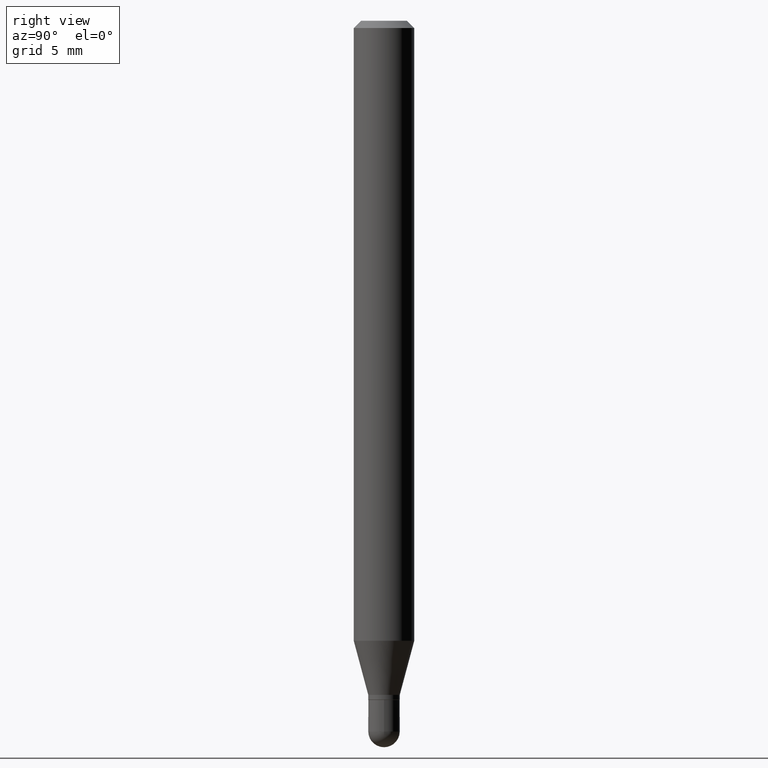
[diagram: clean part render]
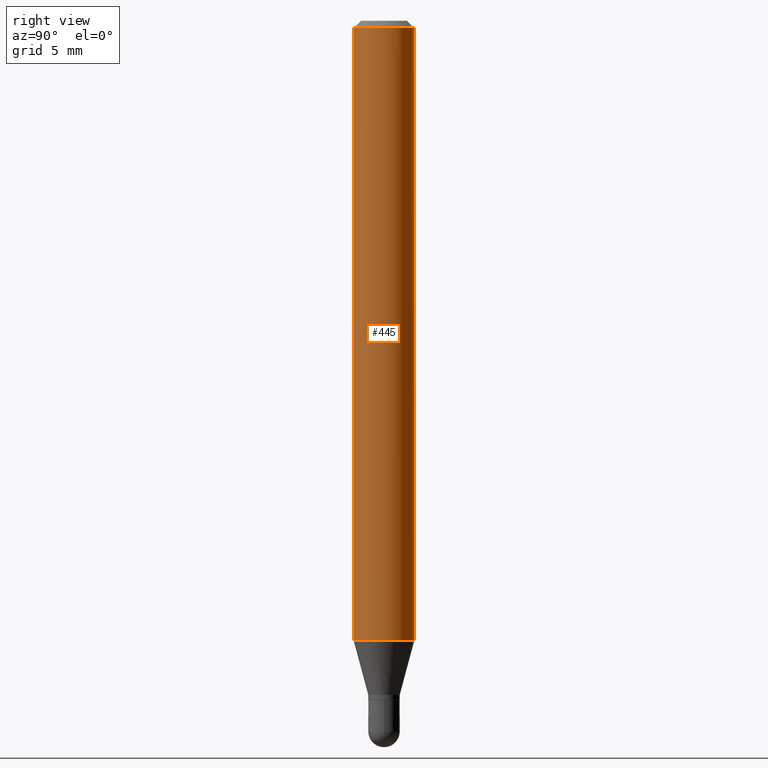
[diagram: same view with one face highlighted and labeled with its STEP entity id]
A machine part, right view. The second image highlights one B-rep face of the part: STEP entity #445.
In plain terms, the highlighted cylindrical surface (edge-blend (fillet) strip) has radius 1.5875 mm, axis along (-0, 0, 1).
Its self-contained STEP definition (entity closure, byte-faithful):
#10 = DIRECTION ( 'NONE',  ( -2.445482281465113779E-29, 3.491462041475252887E-15, 1.000000000000000000 ) ) ;
#34 = ORIENTED_EDGE ( 'NONE', *, *, #120, .F. ) ;
#40 = DIRECTION ( 'NONE',  ( -2.445482281465113779E-29, 3.491462041475253282E-15, 1.000000000000000000 ) ) ;
#61 = DIRECTION ( 'NONE',  ( -2.445482281465113779E-29, 3.491462041475252887E-15, 1.000000000000000000 ) ) ;
#72 = DIRECTION ( 'NONE',  ( -2.445482281465113779E-29, 3.491462041475252887E-15, 1.000000000000000000 ) ) ;
#87 = CARTESIAN_POINT ( 'NONE',  ( 0.000000000000000000, 0.000000000000000000, 0.000000000000000000 ) ) ;
#90 = ORIENTED_EDGE ( 'NONE', *, *, #426, .T. ) ;
#113 = CARTESIAN_POINT ( 'NONE',  ( 4.440892098500940720E-16, 0.06249999999999993755, -0.01500000000000022669 ) ) ;
#116 = VECTOR ( 'NONE', #40, 39.37007874015748143 ) ;
#120 = EDGE_CURVE ( 'NONE', #389, #239, #260, .T. ) ;
#121 = DIRECTION ( 'NONE',  ( -6.982962677686265922E-15, -1.000000000000000000, 4.370956789862821150E-15 ) ) ;
#123 = CYLINDRICAL_SURFACE ( 'NONE', #288, 0.06250000000000000000 ) ;
#135 = LINE ( 'NONE', #338, #210 ) ;
#150 = CARTESIAN_POINT ( 'NONE',  ( -4.364351673553605094E-16, -0.06250000000000451028, -1.280038475772934614 ) ) ;
#154 = CARTESIAN_POINT ( 'NONE',  ( -4.364351673553912750E-16, -0.06250000000000005551, -0.01499999999999979128 ) ) ;
#155 = EDGE_CURVE ( 'NONE', #273, #389, #135, .T. ) ;
#164 = CARTESIAN_POINT ( 'NONE',  ( 4.440892098500625669E-16, 0.06250000000000000000, -2.182163775922033055E-16 ) ) ;
#191 = ORIENTED_EDGE ( 'NONE', *, *, #385, .T. ) ;
#210 = VECTOR ( 'NONE', #257, 39.37007874015748143 ) ;
#239 = VERTEX_POINT ( 'NONE', #113 ) ;
#257 = DIRECTION ( 'NONE',  ( -2.445482281465113779E-29, 3.491462041475253282E-15, 1.000000000000000000 ) ) ;
#260 = CIRCLE ( 'NONE', #415, 0.06250000000000000000 ) ;
#267 = DIRECTION ( 'NONE',  ( -6.982962677686265922E-15, -1.000000000000000000, 3.483106191921935554E-15 ) ) ;
#273 = VERTEX_POINT ( 'NONE', #150 ) ;
#288 = AXIS2_PLACEMENT_3D ( 'NONE', #87, #10, #437 ) ;
#290 = CARTESIAN_POINT ( 'NONE',  ( 4.440892098500935790E-16, 0.06249999999999548972, -1.280038475772935058 ) ) ;
#307 = CARTESIAN_POINT ( 'NONE',  ( 3.668223422197672875E-31, -5.237193062212882215E-17, -0.01500000000000000812 ) ) ;
#338 = CARTESIAN_POINT ( 'NONE',  ( -4.364351673553916201E-16, -0.06250000000000000000, 2.182163775922033055E-16 ) ) ;
#356 = CIRCLE ( 'NONE', #500, 0.06250000000000000000 ) ;
#361 = ORIENTED_EDGE ( 'NONE', *, *, #155, .F. ) ;
#385 = EDGE_CURVE ( 'NONE', #273, #420, #356, .T. ) ;
#389 = VERTEX_POINT ( 'NONE', #154 ) ;
#415 = AXIS2_PLACEMENT_3D ( 'NONE', #307, #61, #267 ) ;
#420 = VERTEX_POINT ( 'NONE', #290 ) ;
#426 = EDGE_CURVE ( 'NONE', #420, #239, #432, .T. ) ;
#430 = FACE_OUTER_BOUND ( 'NONE', #457, .T. ) ;
#432 = LINE ( 'NONE', #164, #116 ) ;
#437 = DIRECTION ( 'NONE',  ( -6.982962677686265922E-15, -1.000000000000000000, 3.491462041475252887E-15 ) ) ;
#445 = ADVANCED_FACE ( 'NONE', ( #430 ), #123, .T. ) ;
#457 = EDGE_LOOP ( 'NONE', ( #191, #90, #34, #361 ) ) ;
#467 = CARTESIAN_POINT ( 'NONE',  ( 3.130311412096322891E-29, -4.469205749789042696E-15, -1.280038475772934836 ) ) ;
#500 = AXIS2_PLACEMENT_3D ( 'NONE', #467, #72, #121 ) ;